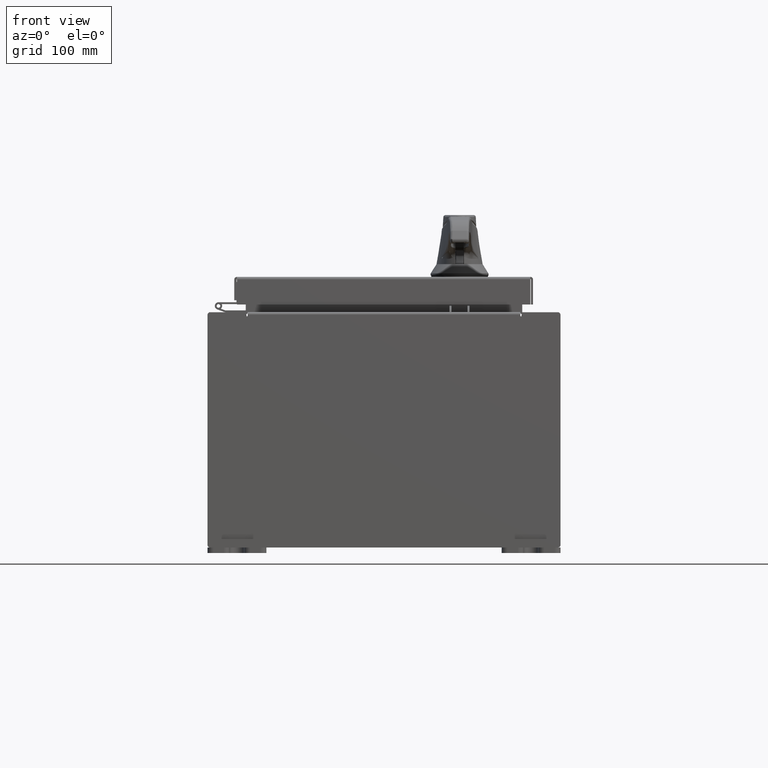
[diagram: clean part render]
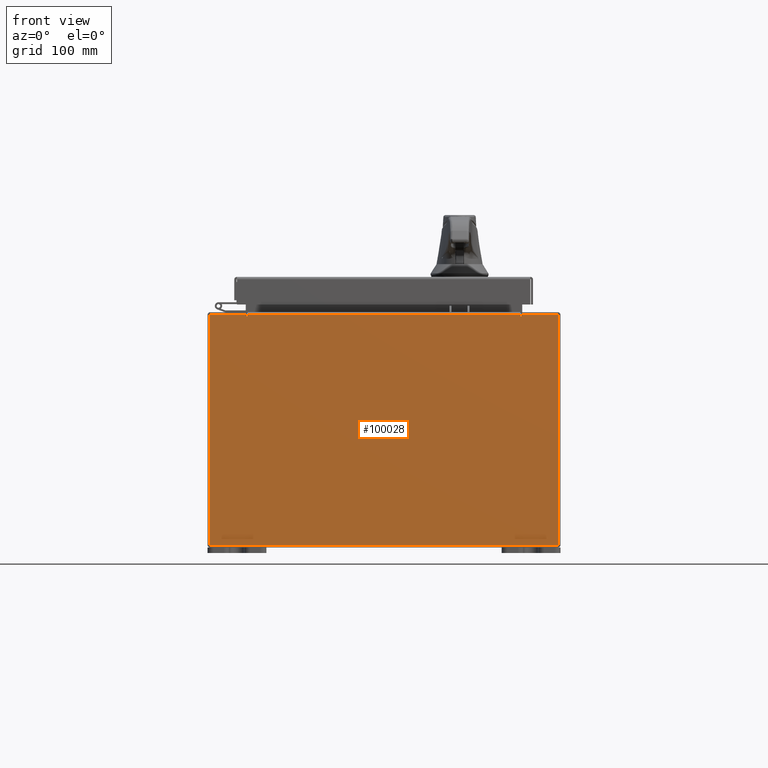
[diagram: same view with one face highlighted and labeled with its STEP entity id]
A machine part, front view. The second image highlights one B-rep face of the part: STEP entity #100028.
In plain terms, the highlighted planar face has unit normal (-0, 1, -0).
Its self-contained STEP definition (entity closure, byte-faithful):
#1479 = ORIENTED_EDGE ( 'NONE', *, *, #71081, .T. ) ;
#1910 = DIRECTION ( 'NONE',  ( -0.0000000000000000000, 1.000000000000000000, -0.0000000000000000000 ) ) ;
#2381 = VERTEX_POINT ( 'NONE', #75986 ) ;
#2645 = EDGE_CURVE ( 'NONE', #8425, #12530, #81374, .T. ) ;
#2773 = AXIS2_PLACEMENT_3D ( 'NONE', #7406, #80990, #31982 ) ;
#5188 = VERTEX_POINT ( 'NONE', #105880 ) ;
#5645 = VERTEX_POINT ( 'NONE', #93621 ) ;
#6228 = ORIENTED_EDGE ( 'NONE', *, *, #40589, .T. ) ;
#7052 = CARTESIAN_POINT ( 'NONE',  ( -4.655874999999998200, 0.0000000000000000000, 3.874949999999999200 ) ) ;
#7116 = ORIENTED_EDGE ( 'NONE', *, *, #71758, .T. ) ;
#7406 = CARTESIAN_POINT ( 'NONE',  ( 0.0000000000000000000, 0.0000000000000000000, 0.0000000000000000000 ) ) ;
#8425 = VERTEX_POINT ( 'NONE', #32717 ) ;
#9146 = CARTESIAN_POINT ( 'NONE',  ( 5.925300000000002700, 0.0000000000000000000, 3.925299999999999100 ) ) ;
#9190 = VECTOR ( 'NONE', #76321, 39.37007874015748100 ) ;
#10243 = CARTESIAN_POINT ( 'NONE',  ( 4.637200000000002700, 0.0000000000000000000, 3.874949999999999200 ) ) ;
#11107 = DIRECTION ( 'NONE',  ( 1.000000000000000000, 0.0000000000000000000, 0.0000000000000000000 ) ) ;
#12218 = VERTEX_POINT ( 'NONE', #36290 ) ;
#12478 = CARTESIAN_POINT ( 'NONE',  ( -5.925299999999998200, 0.0000000000000000000, 3.925299999999999100 ) ) ;
#12530 = VERTEX_POINT ( 'NONE', #57739 ) ;
#12603 = VECTOR ( 'NONE', #54538, 39.37007874015748100 ) ;
#14682 = VERTEX_POINT ( 'NONE', #10243 ) ;
#14728 = EDGE_CURVE ( 'NONE', #14682, #30661, #96142, .T. ) ;
#15192 = LINE ( 'NONE', #46313, #12603 ) ;
#15200 = DIRECTION ( 'NONE',  ( 0.0000000000000000000, 0.0000000000000000000, -1.000000000000000000 ) ) ;
#17501 = CARTESIAN_POINT ( 'NONE',  ( -5.925299999999998200, 0.0000000000000000000, 3.925299999999999100 ) ) ;
#18286 = LINE ( 'NONE', #12478, #100192 ) ;
#18657 = VECTOR ( 'NONE', #29644, 39.37007874015748100 ) ;
#23296 = VERTEX_POINT ( 'NONE', #91049 ) ;
#23744 = PLANE ( 'NONE',  #2773 ) ;
#24151 = ORIENTED_EDGE ( 'NONE', *, *, #52437, .T. ) ;
#27674 = FACE_OUTER_BOUND ( 'NONE', #40952, .T. ) ;
#27941 = VECTOR ( 'NONE', #95377, 39.37007874015748100 ) ;
#28015 = CARTESIAN_POINT ( 'NONE',  ( 4.637200000000002700, 0.0000000000000000000, 3.912299999999999200 ) ) ;
#29644 = DIRECTION ( 'NONE',  ( 0.0000000000000000000, 0.0000000000000000000, 1.000000000000000000 ) ) ;
#30661 = VERTEX_POINT ( 'NONE', #28015 ) ;
#31248 = VECTOR ( 'NONE', #100716, 39.37007874015748100 ) ;
#31752 = ORIENTED_EDGE ( 'NONE', *, *, #60939, .F. ) ;
#31982 = DIRECTION ( 'NONE',  ( 0.0000000000000000000, -0.0000000000000000000, -1.000000000000000000 ) ) ;
#32717 = CARTESIAN_POINT ( 'NONE',  ( -4.674549999999998200, 0.0000000000000000000, 3.874949999999999200 ) ) ;
#33834 = VERTEX_POINT ( 'NONE', #38358 ) ;
#34288 = VECTOR ( 'NONE', #11107, 39.37007874015748100 ) ;
#34338 = EDGE_CURVE ( 'NONE', #36630, #12218, #50719, .T. ) ;
#36114 = CIRCLE ( 'NONE', #42659, 0.01867500000000003900 ) ;
#36290 = CARTESIAN_POINT ( 'NONE',  ( 5.925300000000002700, 0.0000000000000000000, 3.925299999999999100 ) ) ;
#36630 = VERTEX_POINT ( 'NONE', #104286 ) ;
#38358 = CARTESIAN_POINT ( 'NONE',  ( -4.637199999999998200, -1.707404996040164500E-016, 3.912299999999999200 ) ) ;
#40589 = EDGE_CURVE ( 'NONE', #2381, #90795, #99121, .T. ) ;
#40607 = ORIENTED_EDGE ( 'NONE', *, *, #14728, .F. ) ;
#40952 = EDGE_LOOP ( 'NONE', ( #86749, #59667, #81107, #24151, #40607, #31752, #53853, #90110, #7116, #62846, #6228, #1479 ) ) ;
#42659 = AXIS2_PLACEMENT_3D ( 'NONE', #7052, #64140, #15200 ) ;
#46313 = CARTESIAN_POINT ( 'NONE',  ( -4.637199999999998200, -0.0000000000000000000, 0.0000000000000000000 ) ) ;
#47104 = EDGE_CURVE ( 'NONE', #5645, #8425, #36114, .T. ) ;
#48711 = DIRECTION ( 'NONE',  ( 1.000000000000000000, 0.0000000000000000000, 0.0000000000000000000 ) ) ;
#50719 = LINE ( 'NONE', #56933, #91681 ) ;
#50803 = CARTESIAN_POINT ( 'NONE',  ( 4.655875000000002700, 0.0000000000000000000, 3.874949999999999200 ) ) ;
#51340 = LINE ( 'NONE', #91690, #92303 ) ;
#51661 = CARTESIAN_POINT ( 'NONE',  ( 4.637200000000002700, 0.0000000000000000000, 0.0000000000000000000 ) ) ;
#52437 = EDGE_CURVE ( 'NONE', #33834, #30661, #99585, .T. ) ;
#53853 = ORIENTED_EDGE ( 'NONE', *, *, #94808, .F. ) ;
#54538 = DIRECTION ( 'NONE',  ( 0.0000000000000000000, 0.0000000000000000000, -1.000000000000000000 ) ) ;
#56933 = CARTESIAN_POINT ( 'NONE',  ( -5.925299999999998200, 0.0000000000000000000, 3.925299999999999100 ) ) ;
#57739 = CARTESIAN_POINT ( 'NONE',  ( -4.674549999999998200, 0.0000000000000000000, 3.925299999999999100 ) ) ;
#59044 = DIRECTION ( 'NONE',  ( 0.0000000000000000000, 0.0000000000000000000, -1.000000000000000000 ) ) ;
#59667 = ORIENTED_EDGE ( 'NONE', *, *, #47104, .F. ) ;
#60939 = EDGE_CURVE ( 'NONE', #5188, #14682, #88622, .T. ) ;
#61459 = DIRECTION ( 'NONE',  ( 1.000000000000000000, 0.0000000000000000000, 0.0000000000000000000 ) ) ;
#62846 = ORIENTED_EDGE ( 'NONE', *, *, #73145, .T. ) ;
#64140 = DIRECTION ( 'NONE',  ( -0.0000000000000000000, 1.000000000000000000, -0.0000000000000000000 ) ) ;
#66266 = DIRECTION ( 'NONE',  ( 0.0000000000000000000, 0.0000000000000000000, -1.000000000000000000 ) ) ;
#66784 = VECTOR ( 'NONE', #66266, 39.37007874015748100 ) ;
#71035 = CARTESIAN_POINT ( 'NONE',  ( 4.674549999999960900, -0.0000000000000000000, -5.072556122654668400E-014 ) ) ;
#71081 = EDGE_CURVE ( 'NONE', #90795, #12530, #18286, .T. ) ;
#71462 = LINE ( 'NONE', #71035, #27941 ) ;
#71758 = EDGE_CURVE ( 'NONE', #12218, #23296, #91143, .T. ) ;
#73145 = EDGE_CURVE ( 'NONE', #23296, #2381, #51340, .T. ) ;
#75986 = CARTESIAN_POINT ( 'NONE',  ( -5.925299999999998200, 0.0000000000000000000, -3.925300000000000500 ) ) ;
#76013 = CARTESIAN_POINT ( 'NONE',  ( -5.925299999999998200, 0.0000000000000000000, 3.925299999999999100 ) ) ;
#76321 = DIRECTION ( 'NONE',  ( 0.0000000000000000000, 0.0000000000000000000, 1.000000000000000000 ) ) ;
#80990 = DIRECTION ( 'NONE',  ( 0.0000000000000000000, -1.000000000000000000, 0.0000000000000000000 ) ) ;
#81107 = ORIENTED_EDGE ( 'NONE', *, *, #97421, .F. ) ;
#81366 = AXIS2_PLACEMENT_3D ( 'NONE', #50803, #1910, #59044 ) ;
#81374 = LINE ( 'NONE', #86870, #18657 ) ;
#86749 = ORIENTED_EDGE ( 'NONE', *, *, #2645, .F. ) ;
#86870 = CARTESIAN_POINT ( 'NONE',  ( -4.674549999999998200, -0.0000000000000000000, 0.0000000000000000000 ) ) ;
#88622 = CIRCLE ( 'NONE', #81366, 0.01867500000000003900 ) ;
#90110 = ORIENTED_EDGE ( 'NONE', *, *, #34338, .T. ) ;
#90795 = VERTEX_POINT ( 'NONE', #17501 ) ;
#91049 = CARTESIAN_POINT ( 'NONE',  ( 5.925300000000002700, 0.0000000000000000000, -3.925300000000000500 ) ) ;
#91143 = LINE ( 'NONE', #9146, #66784 ) ;
#91681 = VECTOR ( 'NONE', #48711, 39.37007874015748100 ) ;
#91690 = CARTESIAN_POINT ( 'NONE',  ( -5.925299999999998200, 0.0000000000000000000, -3.925300000000000500 ) ) ;
#92303 = VECTOR ( 'NONE', #99931, 39.37007874015748100 ) ;
#92622 = CARTESIAN_POINT ( 'NONE',  ( -4.637199999999998200, -1.707404996040164500E-016, 3.912299999999999200 ) ) ;
#93621 = CARTESIAN_POINT ( 'NONE',  ( -4.637199999999998200, -0.0000000000000000000, 3.874949999999999200 ) ) ;
#94808 = EDGE_CURVE ( 'NONE', #36630, #5188, #71462, .T. ) ;
#95377 = DIRECTION ( 'NONE',  ( -1.085143195100001200E-014, 0.0000000000000000000, -1.000000000000000000 ) ) ;
#96142 = LINE ( 'NONE', #51661, #9190 ) ;
#97421 = EDGE_CURVE ( 'NONE', #33834, #5645, #15192, .T. ) ;
#99121 = LINE ( 'NONE', #76013, #31248 ) ;
#99585 = LINE ( 'NONE', #92622, #34288 ) ;
#99931 = DIRECTION ( 'NONE',  ( -1.000000000000000000, -0.0000000000000000000, -0.0000000000000000000 ) ) ;
#100028 = ADVANCED_FACE ( 'NONE', ( #27674 ), #23744, .F. ) ;
#100192 = VECTOR ( 'NONE', #61459, 39.37007874015748100 ) ;
#100716 = DIRECTION ( 'NONE',  ( -0.0000000000000000000, -0.0000000000000000000, 1.000000000000000000 ) ) ;
#104286 = CARTESIAN_POINT ( 'NONE',  ( 4.674550000000001800, 0.0000000000000000000, 3.925299999999999100 ) ) ;
#105880 = CARTESIAN_POINT ( 'NONE',  ( 4.674550000000002600, 0.0000000000000000000, 3.874949999999999200 ) ) ;